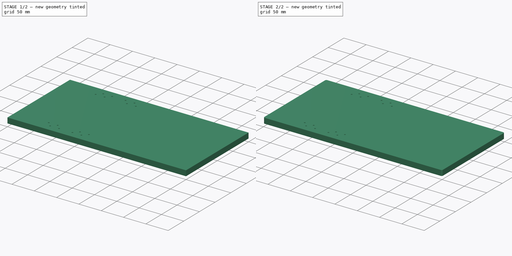
[diagram: build sequence overview — one tinted view per stage of 2, left to right]
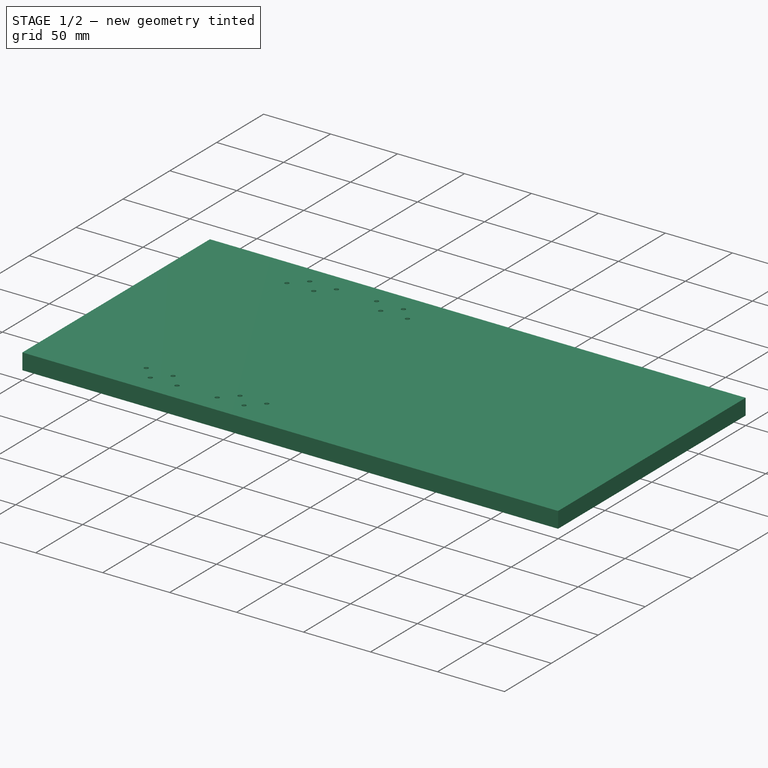
[diagram: stage 1 of 2 — iso view after this stage's code; geometry added in this stage tinted green]
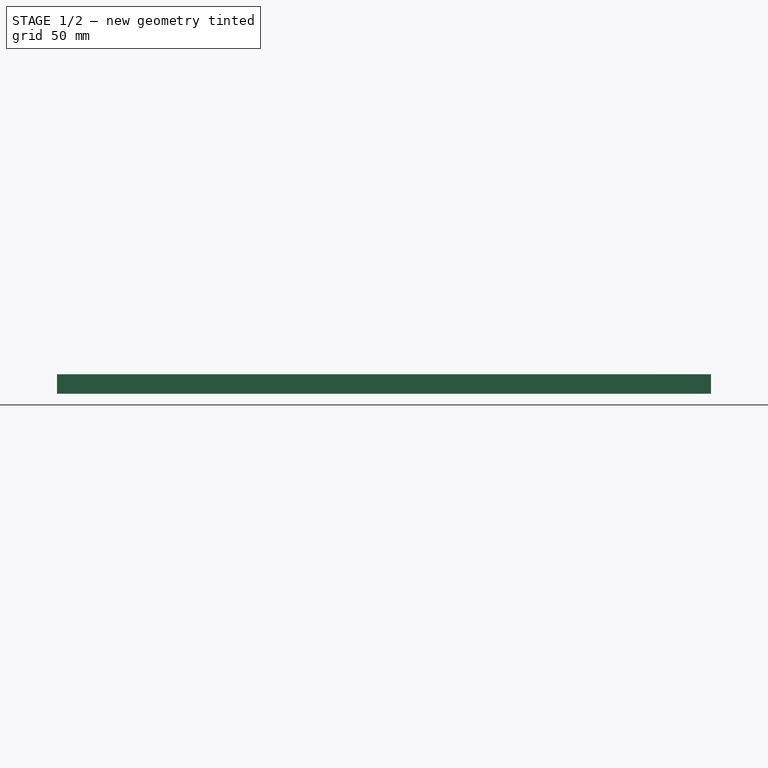
[diagram: stage 1 of 2 — front view after this stage's code; geometry added in this stage tinted green]
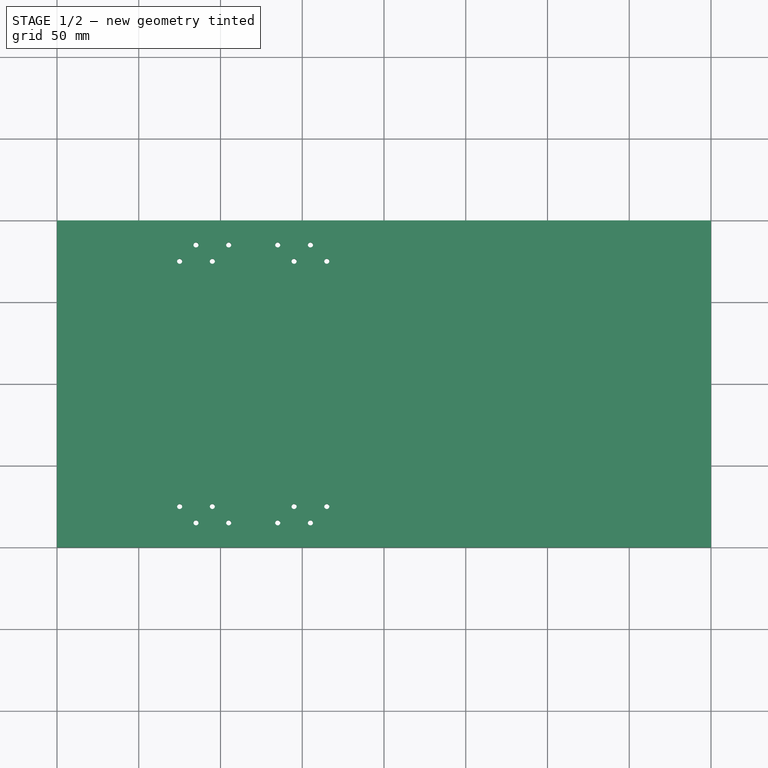
[diagram: stage 1 of 2 — top view after this stage's code; geometry added in this stage tinted green]
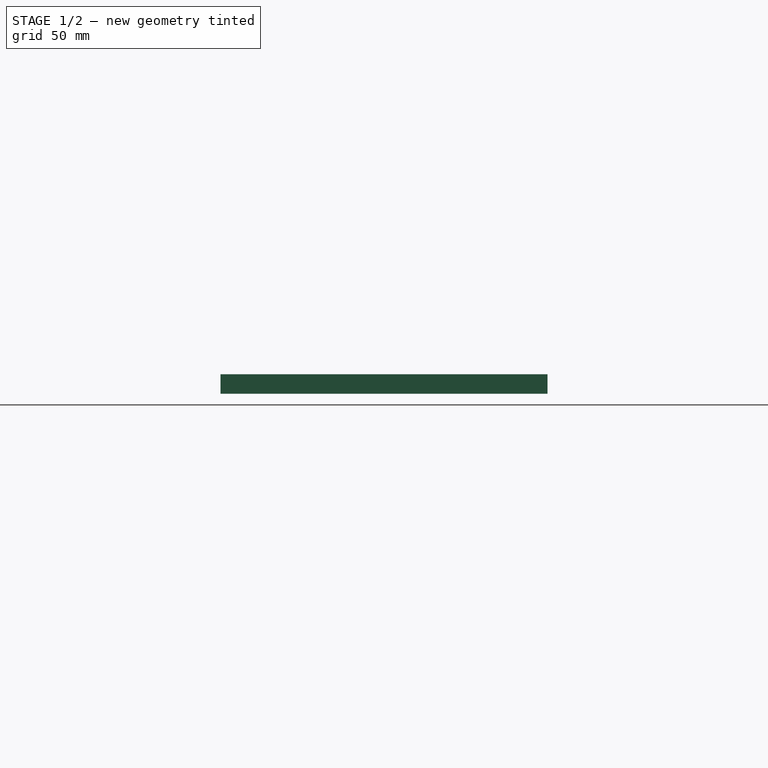
[diagram: stage 1 of 2 — right view after this stage's code; geometry added in this stage tinted green]
FCSTD DOCUMENT  (FreeCAD 0.19R24276 (Git))
Label: Osnovanie_200x400x12
License: All rights reserved
LicenseURL: http://en.wikipedia.org/wiki/All_rights_reserved
objects: Sketcher::SketchObject×1, PartDesign::Pad×1, PartDesign::Fillet×1, PartDesign::Body×1
note: 6 computed .brp shape members not serialized (recipe doc carries the construction recipe); baked Part::Feature solids carry a one-line shape summary decoded from their .brp

FEATURE [Sketcher::SketchObject] Sketch  label="Sketch_200x400"
  FullyConstrained = false
  MapMode = 5
  Support = -> [XY_Plane]
  sketch-geometry (35):
    g0: LineSegment StartX=0 StartY=0 StartZ=0 EndX=400 EndY=0 EndZ=0
    g1: LineSegment StartX=400 StartY=0 StartZ=0 EndX=400 EndY=200 EndZ=0
    g2: LineSegment StartX=400 StartY=200 StartZ=0 EndX=0 EndY=200 EndZ=0
    g3: LineSegment StartX=0 StartY=200 StartZ=0 EndX=0 EndY=0 EndZ=0
    g4: LineSegment StartX=0 StartY=100 StartZ=0 EndX=400 EndY=100 EndZ=0
    g5: Circle CenterX=120 CenterY=100 CenterZ=0 NormalX=0 NormalY=0 NormalZ=1 AngleXU=0 Radius=110
    g6: LineSegment StartX=120 StartY=100 StartZ=0 EndX=120 EndY=0 EndZ=0
    g7: LineSegment StartX=55 StartY=0 StartZ=0 EndX=185 EndY=0 EndZ=0
    g8: LineSegment StartX=185 StartY=0 StartZ=0 EndX=185 EndY=40 EndZ=0
    g9: LineSegment StartX=185 StartY=40 StartZ=0 EndX=55 EndY=40 EndZ=0
    g10: LineSegment StartX=55 StartY=40 StartZ=0 EndX=55 EndY=0 EndZ=0
    g11: LineSegment StartX=55 StartY=25 StartZ=0 EndX=185 EndY=25 EndZ=0
    g12: LineSegment StartX=55 StartY=15 StartZ=0 EndX=185 EndY=15 EndZ=0
    g13: Circle CenterX=85 CenterY=15 CenterZ=0 NormalX=0 NormalY=0 NormalZ=1 AngleXU=0 Radius=1.5625
    g14: Circle CenterX=105 CenterY=15 CenterZ=0 NormalX=0 NormalY=0 NormalZ=1 AngleXU=0 Radius=1.5625
    g15: Circle CenterX=75 CenterY=25 CenterZ=0 NormalX=0 NormalY=0 NormalZ=1 AngleXU=0 Radius=1.5625
    g16: Circle CenterX=95 CenterY=25 CenterZ=0 NormalX=0 NormalY=0 NormalZ=1 AngleXU=0 Radius=1.5625
    g17: Circle CenterX=155 CenterY=15 CenterZ=0 NormalX=0 NormalY=0 NormalZ=1 AngleXU=0 Radius=1.5625
    g18: Circle CenterX=135 CenterY=15 CenterZ=0 NormalX=0 NormalY=0 NormalZ=1 AngleXU=0 Radius=1.5625
    g19: Circle CenterX=145 CenterY=25 CenterZ=0 NormalX=0 NormalY=0 NormalZ=1 AngleXU=0 Radius=1.5625
    g20: Circle CenterX=165 CenterY=25 CenterZ=0 NormalX=0 NormalY=0 NormalZ=1 AngleXU=0 Radius=1.5625
    g21: LineSegment StartX=55 StartY=200 StartZ=0 EndX=185 EndY=200 EndZ=0
    g22: LineSegment StartX=185 StartY=200 StartZ=0 EndX=185 EndY=160 EndZ=0
    g23: LineSegment StartX=185 StartY=160 StartZ=0 EndX=55 EndY=160 EndZ=0
    g24: LineSegment StartX=55 StartY=160 StartZ=0 EndX=55 EndY=200 EndZ=0
    g25: LineSegment StartX=55 StartY=175 StartZ=0 EndX=185 EndY=175 EndZ=0
    g26: LineSegment StartX=55 StartY=185 StartZ=0 EndX=185 EndY=185 EndZ=0
    g27: Circle CenterX=85 CenterY=185 CenterZ=0 NormalX=0 NormalY=0 NormalZ=1 AngleXU=0 Radius=1.5625
    g28: Circle CenterX=105 CenterY=185 CenterZ=0 NormalX=0 NormalY=0 NormalZ=1 AngleXU=0 Radius=1.5625
    g29: Circle CenterX=75 CenterY=175 CenterZ=0 NormalX=0 NormalY=0 NormalZ=1 AngleXU=0 Radius=1.5625
    g30: Circle CenterX=95 CenterY=175 CenterZ=0 NormalX=0 NormalY=0 NormalZ=1 AngleXU=0 Radius=1.5625
    g31: Circle CenterX=155 CenterY=185 CenterZ=0 NormalX=0 NormalY=0 NormalZ=1 AngleXU=0 Radius=1.5625
    g32: Circle CenterX=135 CenterY=185 CenterZ=0 NormalX=0 NormalY=0 NormalZ=1 AngleXU=0 Radius=1.5625
    g33: Circle CenterX=145 CenterY=175 CenterZ=0 NormalX=0 NormalY=0 NormalZ=1 AngleXU=0 Radius=1.5625
    g34: Circle CenterX=165 CenterY=175 CenterZ=0 NormalX=0 NormalY=0 NormalZ=1 AngleXU=0 Radius=1.5625
  constraints (80):
    c: Coincident(g0,g1)
    c: Coincident(g1,g2)
    c: Coincident(g2,g3)
    c: Coincident(g3,g0)
    c: Horizontal(g0)
    c: Horizontal(g2)
    c: Vertical(g1)
    c: Vertical(g3)
    c: Coincident(g0,g-1)
    c: DistanceY(g1,g1) = 200
    c: DistanceX(g0,g0) = 400
    c: Horizontal(g4)
    c: Symmetric(g0,g1,g4)
    c: DistanceX(g0,g6) = 120
    c: PointOnObject(g6,g4)
    c: Coincident(g5,g6)
    c: Diameter(g5) = 220
    c: Coincident(g7,g8)
    c: Coincident(g8,g9)
    c: Coincident(g9,g10)
    c: Coincident(g10,g7)
    c: Horizontal(g7)
    c: Horizontal(g9)
    c: Vertical(g8)
    c: Vertical(g10)
    c: PointOnObject(g7,g0)
    c: DistanceX(g9,g9) = 130
    c: Symmetric(g7,g7,g6)
    c: DistanceY(g8,g8) = 40
    c: PointOnObject(g12,g8)
    c: PointOnObject(g11,g8)
    c: PointOnObject(g11,g10)
    c: PointOnObject(g12,g10)
    c: DistanceY(g7,g12) = 15
    c: DistanceY(g7,g11) = 25
    c: Horizontal(g11)
    c: Horizontal(g12)
    c: PointOnObject(g13,g12)
    c: PointOnObject(g14,g12)
    c: PointOnObject(g15,g11)
    c: PointOnObject(g16,g11)
    c: Equal(g13,g14)
    c: Equal(g14,g15)
    c: Equal(g15,g16)
    c: Diameter(g14) = 3.125
    c: DistanceX(g9,g15) = 20
    c: DistanceX(g15,g16) = 20
    c: DistanceX(g13,g14) = 20
    c: DistanceX(g15,g13) = 10
    c: Equal(g17,g18)
    c: Equal(g18,g20)
    c: Equal(g20,g19)
    c: Diameter(g18) = 3.125
    c: Coincident(g21,g22)
    c: Coincident(g22,g23)
    c: Coincident(g23,g24)
    c: Coincident(g24,g21)
    c: Horizontal(g21)
    c: Horizontal(g23)
    c: Vertical(g22)
    c: Vertical(g24)
    c: PointOnObject(g26,g22)
    c: PointOnObject(g25,g22)
    c: PointOnObject(g25,g24)
    c: PointOnObject(g26,g24)
    c: Horizontal(g25)
    c: Horizontal(g26)
    c: PointOnObject(g27,g26)
    c: PointOnObject(g28,g26)
    c: PointOnObject(g29,g25)
    c: PointOnObject(g30,g25)
    c: Equal(g27,g28)
    c: Equal(g28,g29)
    c: Equal(g29,g30)
    c: Diameter(g28) = 3.125
    c: Equal(g31,g32)
    c: Equal(g32,g34)
    c: Equal(g34,g33)
    c: Diameter(g32) = 3.125
    c: PointOnObject(g4,g3)
FEATURE [PartDesign::Pad] Pad  label="Pad_h12"
  Direction = (1,1,1)
  Length = 12
  Length2 = 100
  Profile = -> Sketch
  Type = 0
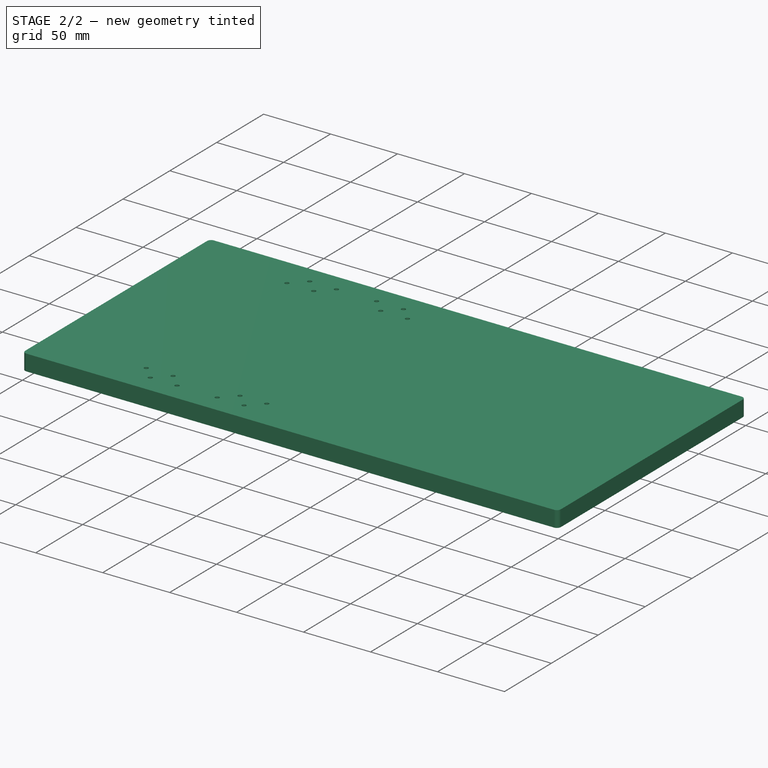
[diagram: stage 2 of 2 — iso view after this stage's code; geometry added in this stage tinted green]
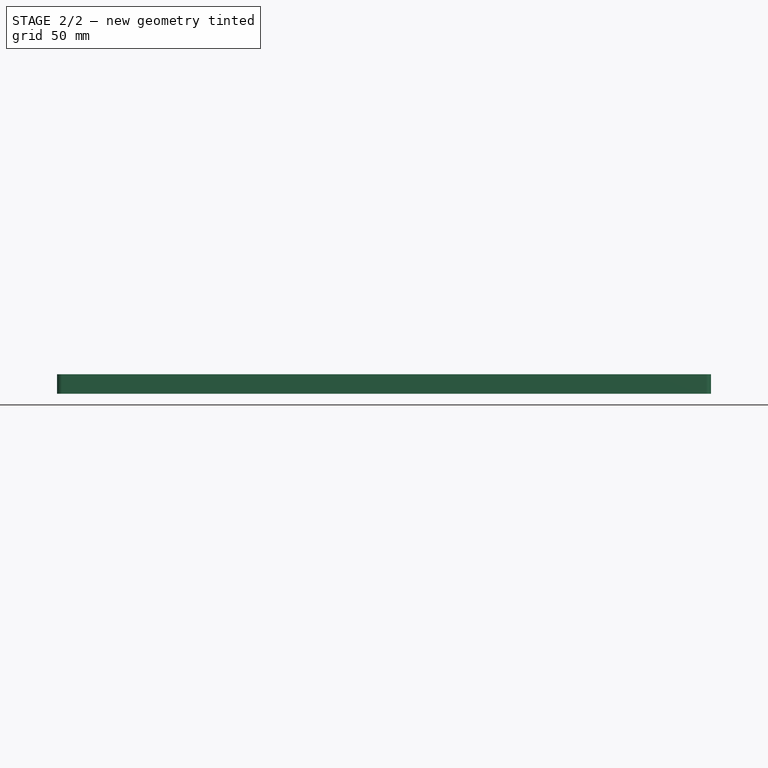
[diagram: stage 2 of 2 — front view after this stage's code; geometry added in this stage tinted green]
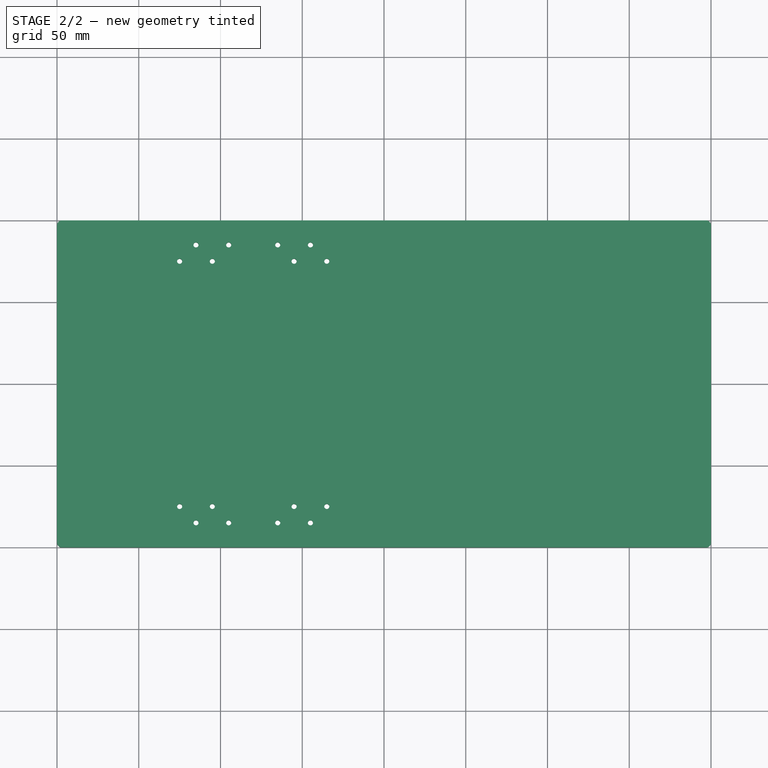
[diagram: stage 2 of 2 — top view after this stage's code; geometry added in this stage tinted green]
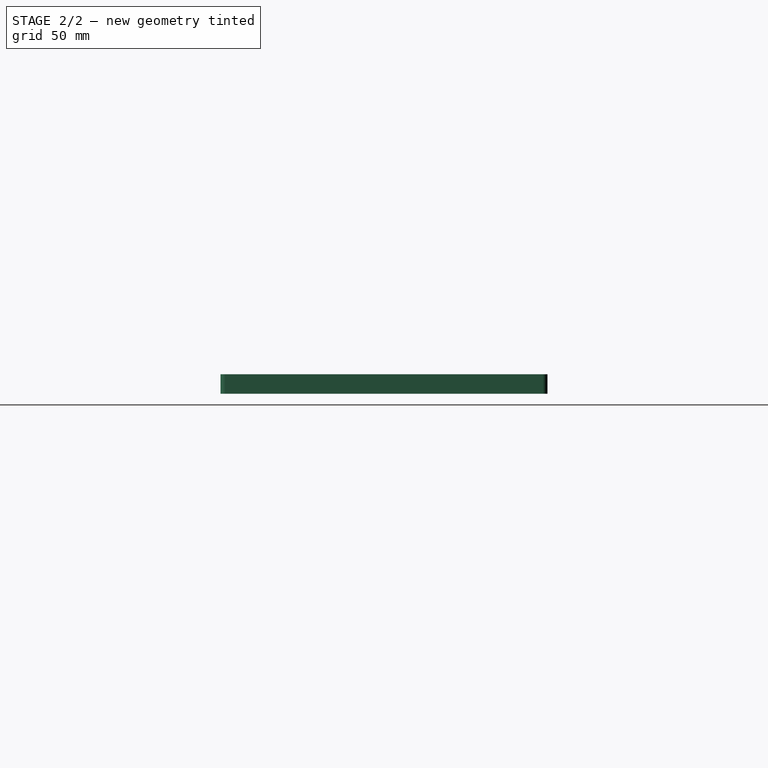
[diagram: stage 2 of 2 — right view after this stage's code; geometry added in this stage tinted green]
FEATURE [PartDesign::Fillet] Fillet
  Base = -> Pad [Edge1,Edge2,Edge5,Edge8]
  BaseFeature = -> Pad
  Radius = 3
  SupportTransform = false
FEATURE [PartDesign::Body] Body
  Group = -> [Sketch,Pad,Fillet]
  Origin = -> Origin
  Tip = -> Fillet
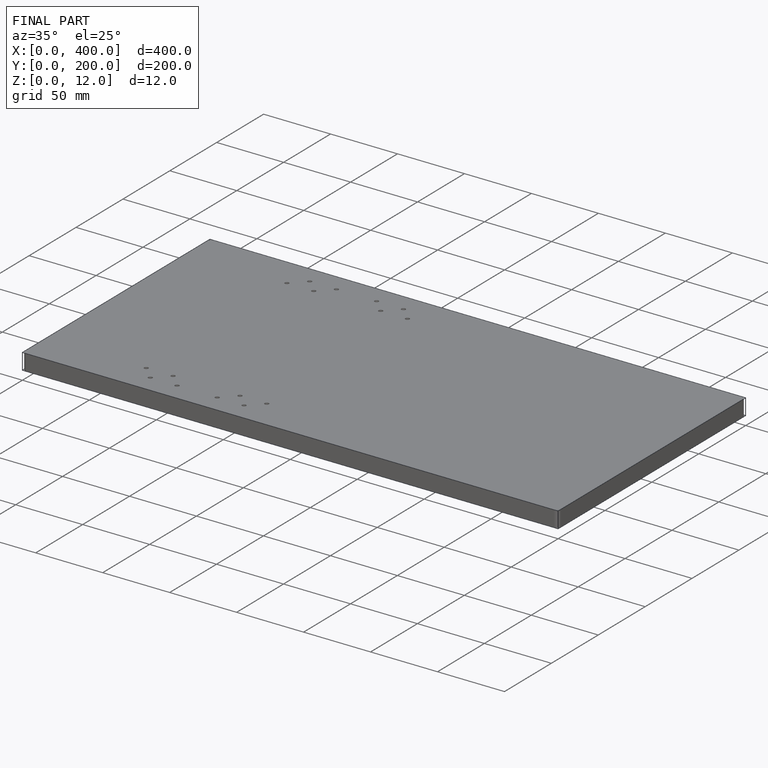
[diagram: finished part — iso view with bounding-box wireframe]
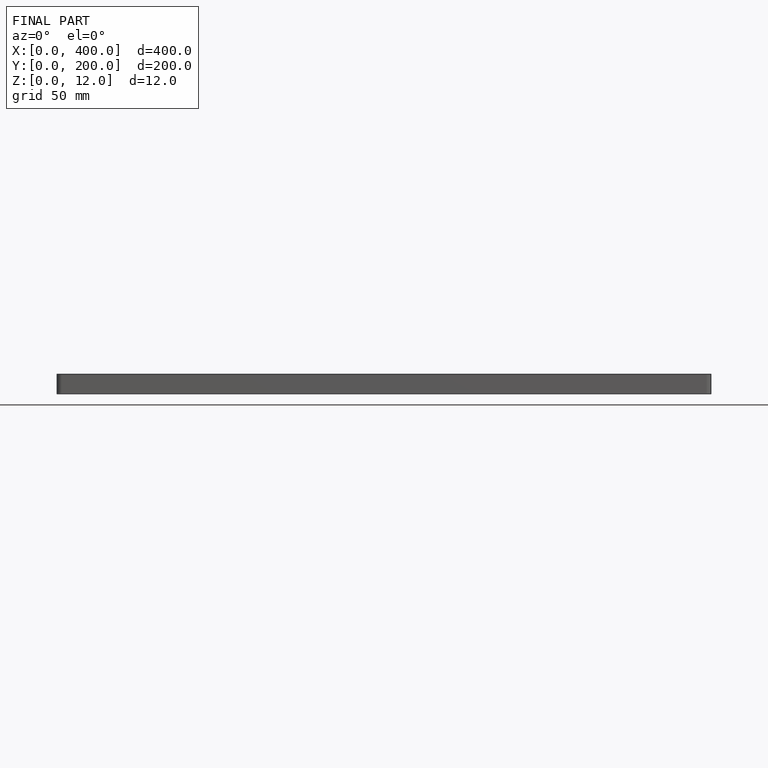
[diagram: finished part — front view with bounding-box wireframe]
